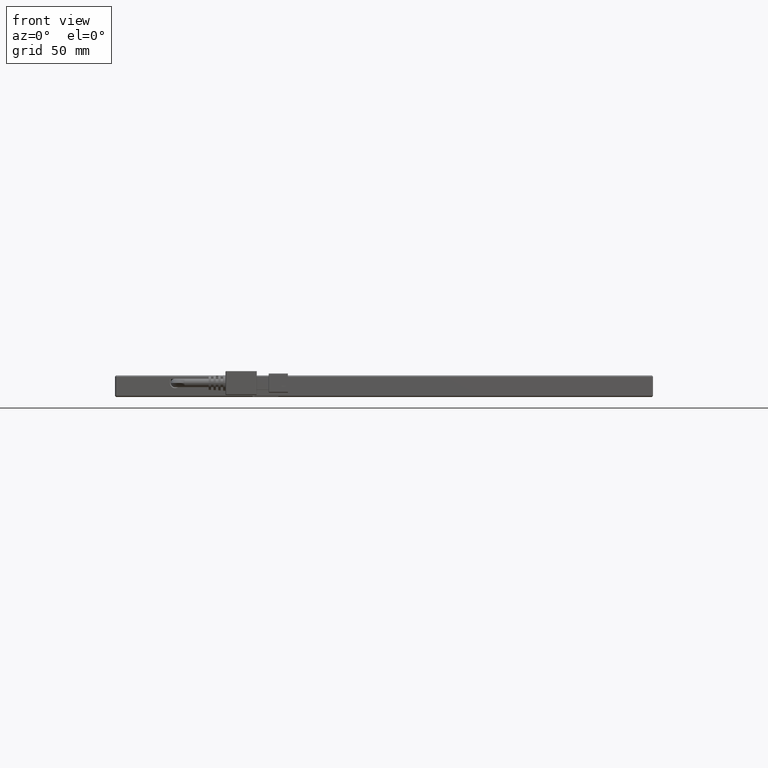
[diagram: clean part render]
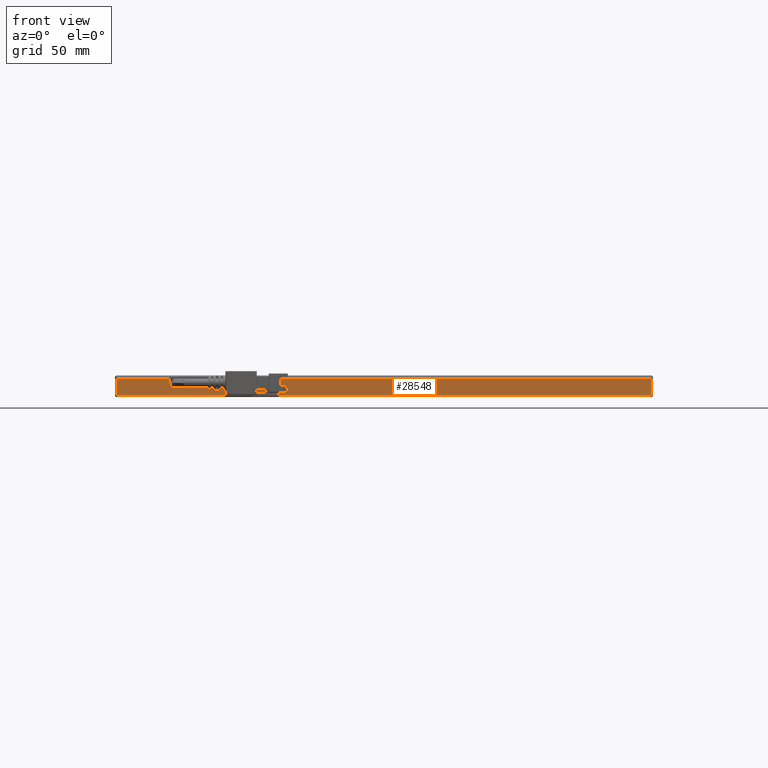
[diagram: same view with one face highlighted and labeled with its STEP entity id]
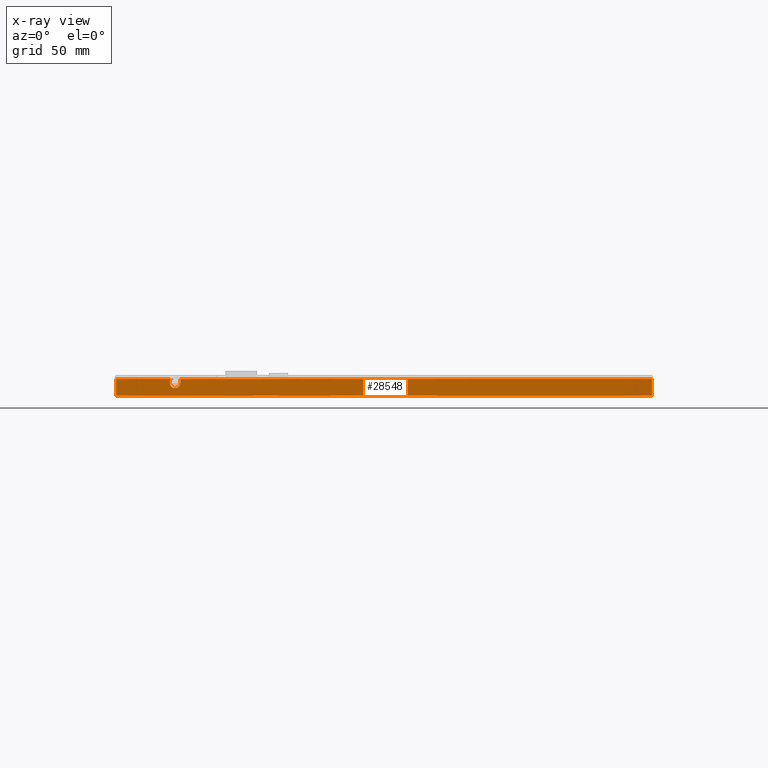
[diagram: x-ray of the same camera — body ghosted, the highlighted face saturated]
A machine part, front view. The second image highlights one B-rep face of the part: STEP entity #28548.
The next image is the same camera in x-ray: the body ghosted, the highlighted face saturated — about 0% of this face is hidden behind the body in this view.
In plain terms, the highlighted planar face has unit normal (0, 1, -0).
Its self-contained STEP definition (entity closure, byte-faithful):
#144 = LINE ( 'NONE', #6828, #3168 ) ;
#882 = VERTEX_POINT ( 'NONE', #1699 ) ;
#1457 = EDGE_CURVE ( 'NONE', #1599, #4594, #6772, .T. ) ;
#1599 = VERTEX_POINT ( 'NONE', #29562 ) ;
#1623 = EDGE_CURVE ( 'NONE', #4594, #882, #144, .T. ) ;
#1699 = CARTESIAN_POINT ( 'NONE',  ( -82.52702531645569200, -81.80746835443039800, 3.750000000000000000 ) ) ;
#2084 = CARTESIAN_POINT ( 'NONE',  ( 113.8229746835443600, -81.80746835443039800, 3.750000000000000000 ) ) ;
#2452 = VECTOR ( 'NONE', #42728, 1000.000000000000000 ) ;
#2610 = ORIENTED_EDGE ( 'NONE', *, *, #18185, .F. ) ;
#3168 = VECTOR ( 'NONE', #6493, 1000.000000000000000 ) ;
#3242 = EDGE_CURVE ( 'NONE', #30194, #7554, #45791, .T. ) ;
#4594 = VERTEX_POINT ( 'NONE', #14037 ) ;
#6493 = DIRECTION ( 'NONE',  ( 0.0000000000000000000, 0.0000000000000000000, 1.000000000000000000 ) ) ;
#6772 = CIRCLE ( 'NONE', #32508, 2.150000000028740000 ) ;
#6828 = CARTESIAN_POINT ( 'NONE',  ( -82.52702531645569200, -81.80746835443039800, 3.750000000000000000 ) ) ;
#7272 = DIRECTION ( 'NONE',  ( 1.000000000000000000, 0.0000000000000000000, -0.0000000000000000000 ) ) ;
#7416 = ORIENTED_EDGE ( 'NONE', *, *, #1623, .F. ) ;
#7554 = VERTEX_POINT ( 'NONE', #27570 ) ;
#8248 = VERTEX_POINT ( 'NONE', #39821 ) ;
#8279 = ORIENTED_EDGE ( 'NONE', *, *, #29652, .F. ) ;
#11530 = DIRECTION ( 'NONE',  ( 1.000000000000000000, 0.0000000000000000000, -0.0000000000000000000 ) ) ;
#11869 = CARTESIAN_POINT ( 'NONE',  ( 2.322974683544309900, -81.80746835443039800, 3.750000000000000000 ) ) ;
#12510 = VERTEX_POINT ( 'NONE', #31065 ) ;
#14037 = CARTESIAN_POINT ( 'NONE',  ( -82.52702531644575900, -81.80746835446956300, 2.099999999999999600 ) ) ;
#15316 = VERTEX_POINT ( 'NONE', #30159 ) ;
#15396 = VECTOR ( 'NONE', #42118, 1000.000000000000000 ) ;
#16974 = VECTOR ( 'NONE', #39290, 1000.000000000000000 ) ;
#18185 = EDGE_CURVE ( 'NONE', #34471, #7554, #37493, .T. ) ;
#21160 = LINE ( 'NONE', #11869, #48296 ) ;
#21582 = ORIENTED_EDGE ( 'NONE', *, *, #49183, .F. ) ;
#21702 = DIRECTION ( 'NONE',  ( 0.0000000000000000000, 0.0000000000000000000, 1.000000000000000000 ) ) ;
#21743 = VECTOR ( 'NONE', #7272, 1000.000000000000000 ) ;
#22376 = EDGE_CURVE ( 'NONE', #12510, #1599, #37639, .T. ) ;
#23639 = AXIS2_PLACEMENT_3D ( 'NONE', #36698, #44955, #21702 ) ;
#24660 = DIRECTION ( 'NONE',  ( 0.0000000000000000000, 0.0000000000000000000, -1.000000000000000000 ) ) ;
#25901 = PLANE ( 'NONE',  #23639 ) ;
#26711 = CARTESIAN_POINT ( 'NONE',  ( -86.82702531645571800, -81.80746835443039800, 3.750000000000000000 ) ) ;
#27214 = ORIENTED_EDGE ( 'NONE', *, *, #29151, .F. ) ;
#27570 = CARTESIAN_POINT ( 'NONE',  ( 113.8229746835443400, -81.80746835443039800, -3.250000000000002200 ) ) ;
#27680 = VECTOR ( 'NONE', #44827, 1000.000000000000000 ) ;
#28548 = ADVANCED_FACE ( 'NONE', ( #39368 ), #25901, .F. ) ;
#28990 = CARTESIAN_POINT ( 'NONE',  ( 114.3229746835443400, -81.80746835443039800, -3.249999999999999600 ) ) ;
#29151 = EDGE_CURVE ( 'NONE', #882, #34471, #21160, .T. ) ;
#29562 = CARTESIAN_POINT ( 'NONE',  ( -84.67702531645572600, -81.80746835448576300, -0.05000000002874580000 ) ) ;
#29652 = EDGE_CURVE ( 'NONE', #8248, #15316, #45238, .T. ) ;
#29803 = ORIENTED_EDGE ( 'NONE', *, *, #1457, .F. ) ;
#30159 = CARTESIAN_POINT ( 'NONE',  ( -86.82702531645571800, -81.80746835443039800, 3.750000000000000000 ) ) ;
#30194 = VERTEX_POINT ( 'NONE', #46428 ) ;
#30281 = ORIENTED_EDGE ( 'NONE', *, *, #22376, .F. ) ;
#30359 = CARTESIAN_POINT ( 'NONE',  ( 2.322974683544309900, -81.80746835443041200, 3.750000000000000000 ) ) ;
#30919 = DIRECTION ( 'NONE',  ( 0.0000000000000000000, 0.0000000000000000000, -1.000000000000000000 ) ) ;
#31065 = CARTESIAN_POINT ( 'NONE',  ( -86.82702531647454700, -81.80746835446956300, 2.099999999999994300 ) ) ;
#32508 = AXIS2_PLACEMENT_3D ( 'NONE', #40039, #48093, #24660 ) ;
#34471 = VERTEX_POINT ( 'NONE', #2084 ) ;
#34623 = DIRECTION ( 'NONE',  ( 0.0000000000000000000, -1.000000000000000000, 0.0000000000000000000 ) ) ;
#35281 = CARTESIAN_POINT ( 'NONE',  ( -84.67702531645572600, -81.80746835448576300, 2.099999999999999600 ) ) ;
#35975 = EDGE_LOOP ( 'NONE', ( #30281, #21582, #8279, #49892, #44156, #2610, #27214, #7416, #29803 ) ) ;
#36698 = CARTESIAN_POINT ( 'NONE',  ( 114.3229746835443400, -81.80746835443039800, 3.750000000000000000 ) ) ;
#37493 = LINE ( 'NONE', #46365, #16974 ) ;
#37599 = EDGE_CURVE ( 'NONE', #30194, #8248, #49762, .T. ) ;
#37639 = CIRCLE ( 'NONE', #49409, 2.150000000028740000 ) ;
#39290 = DIRECTION ( 'NONE',  ( -0.0000000000000000000, -0.0000000000000000000, -1.000000000000000000 ) ) ;
#39368 = FACE_OUTER_BOUND ( 'NONE', #35975, .T. ) ;
#39821 = CARTESIAN_POINT ( 'NONE',  ( -109.1770253164556800, -81.80746835443042600, 3.750000000000000000 ) ) ;
#40039 = CARTESIAN_POINT ( 'NONE',  ( -84.67702531645572600, -81.80746835448576300, 2.099999999999999600 ) ) ;
#40987 = LINE ( 'NONE', #26711, #2452 ) ;
#42118 = DIRECTION ( 'NONE',  ( 0.0000000000000000000, 0.0000000000000000000, 1.000000000000000000 ) ) ;
#42728 = DIRECTION ( 'NONE',  ( -0.0000000000000000000, -0.0000000000000000000, -1.000000000000000000 ) ) ;
#44156 = ORIENTED_EDGE ( 'NONE', *, *, #3242, .T. ) ;
#44827 = DIRECTION ( 'NONE',  ( 1.000000000000000000, 0.0000000000000000000, 0.0000000000000000000 ) ) ;
#44955 = DIRECTION ( 'NONE',  ( 0.0000000000000000000, 1.000000000000000000, -0.0000000000000000000 ) ) ;
#45238 = LINE ( 'NONE', #30359, #21743 ) ;
#45478 = CARTESIAN_POINT ( 'NONE',  ( -109.1770253164557300, -81.80746835443039800, 3.750000000000000000 ) ) ;
#45791 = LINE ( 'NONE', #28990, #27680 ) ;
#46365 = CARTESIAN_POINT ( 'NONE',  ( 113.8229746835443400, -81.80746835443039800, 3.750000000000000000 ) ) ;
#46428 = CARTESIAN_POINT ( 'NONE',  ( -109.1770253164557300, -81.80746835443042600, -3.250000000000001300 ) ) ;
#48093 = DIRECTION ( 'NONE',  ( 0.0000000000000000000, -1.000000000000000000, 0.0000000000000000000 ) ) ;
#48296 = VECTOR ( 'NONE', #11530, 1000.000000000000000 ) ;
#49183 = EDGE_CURVE ( 'NONE', #15316, #12510, #40987, .T. ) ;
#49409 = AXIS2_PLACEMENT_3D ( 'NONE', #35281, #34623, #30919 ) ;
#49762 = LINE ( 'NONE', #45478, #15396 ) ;
#49892 = ORIENTED_EDGE ( 'NONE', *, *, #37599, .F. ) ;